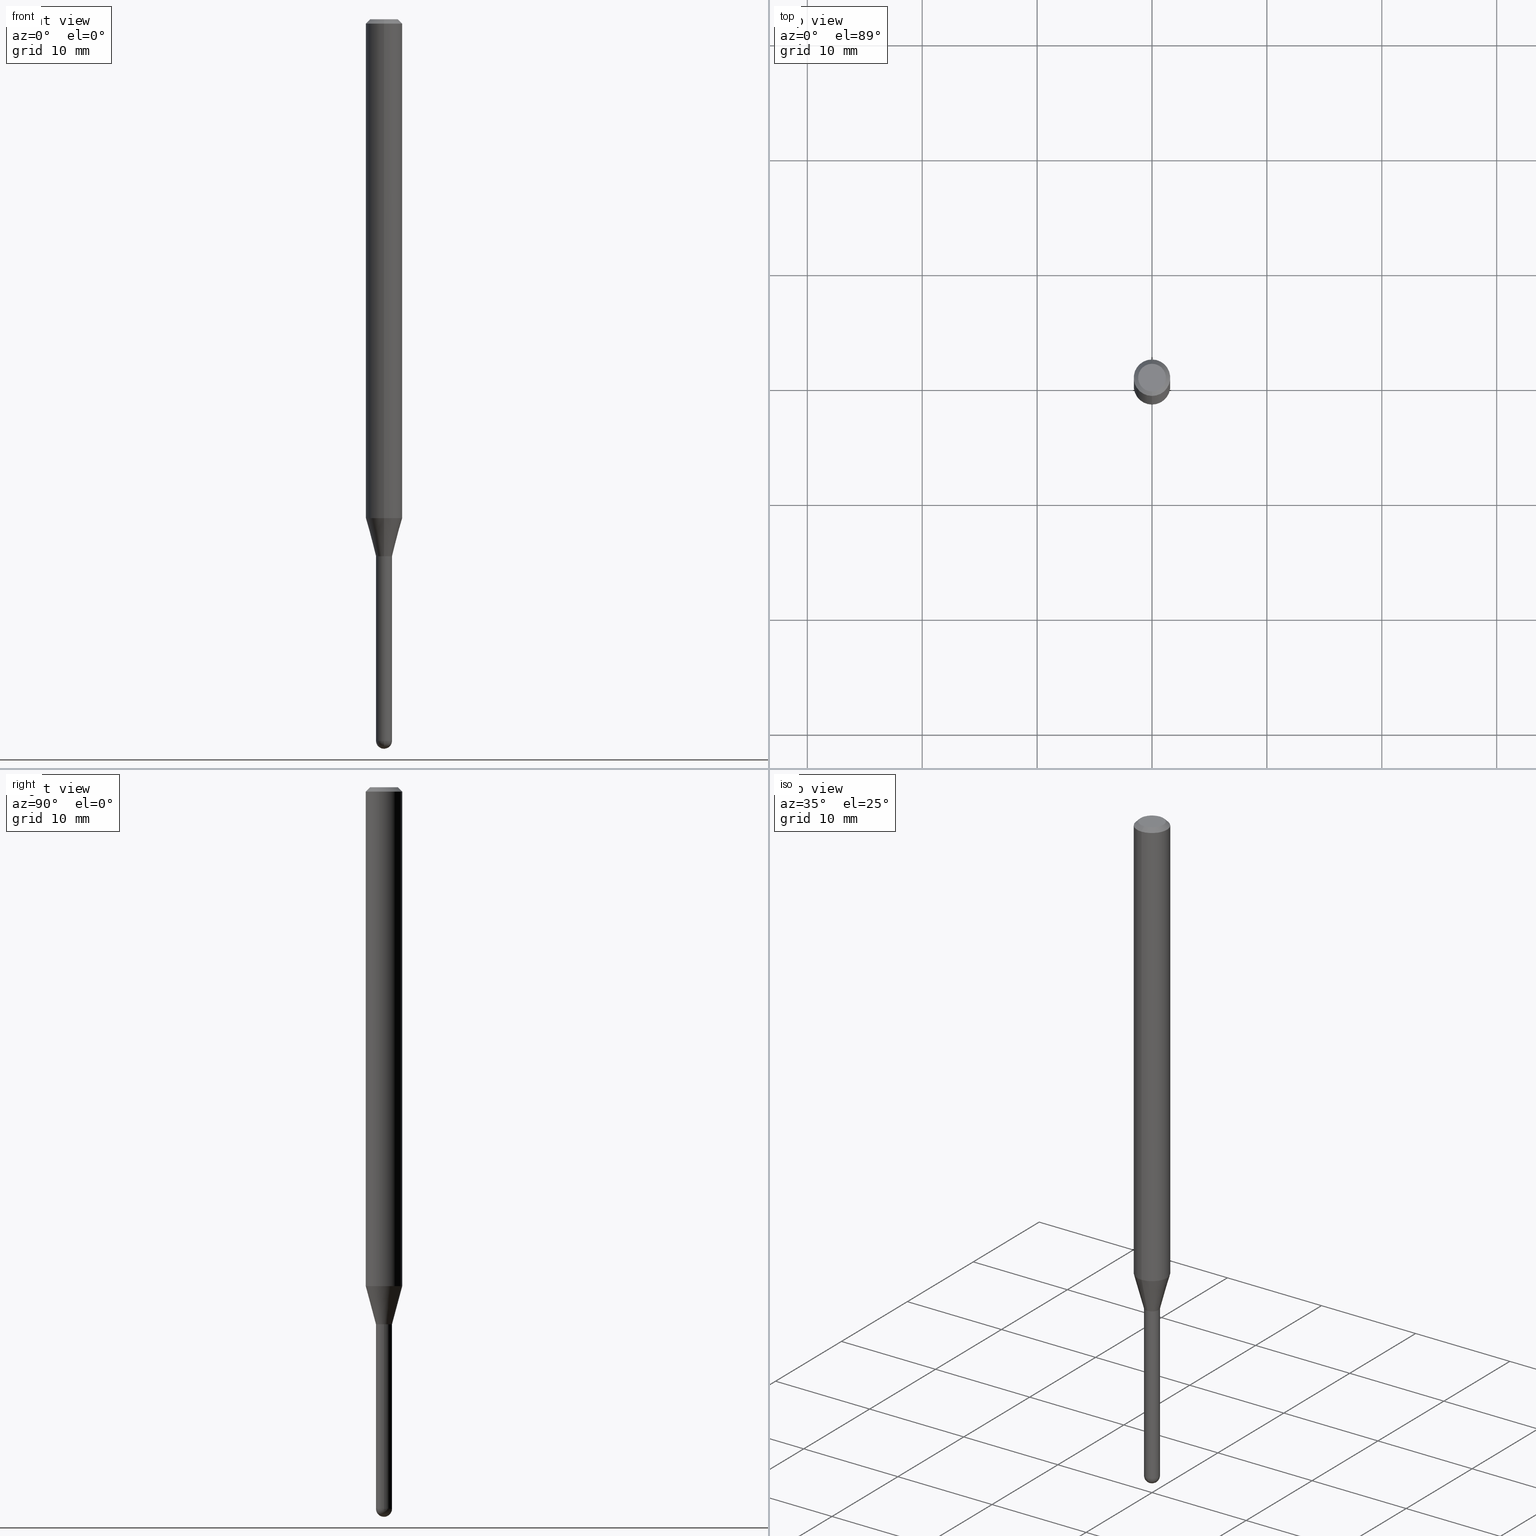
[diagram: canonical four-view strip — front | top / right | iso, engineering-drawing reading convention]
A machine part, canonical four-view strip (front | top / right | iso — engineering-drawing reading convention). The complete STEP part file that produces these views, byte-faithful:
ISO-10303-21;
HEADER;
FILE_DESCRIPTION (( 'STEP AP203' ),
    '1' );
FILE_NAME ('04521.STEP',
    '2024-03-08T20:26:06',
    ( '' ),
    ( '' ),
    'SwSTEP 2.0',
    'SolidWorks 2023',
    '' );
FILE_SCHEMA (( 'CONFIG_CONTROL_DESIGN' ));
ENDSEC;

DATA;
#1 = CARTESIAN_POINT ( 'NONE',  ( 4.499652193453970198E-29, -6.424340571078891610E-15, -1.840000000000000080 ) ) ;
#2 = ORIENTED_EDGE ( 'NONE', *, *, #231, .T. ) ;
#3 = DATE_AND_TIME ( #360, #362 ) ;
#4 = AXIS2_PLACEMENT_3D ( 'NONE', #249, #282, #164 ) ;
#5 = COORDINATED_UNIVERSAL_TIME_OFFSET ( 5, 0, .BEHIND. ) ;
#6 = DIRECTION ( 'NONE',  ( -2.445463148616288200E-29, 3.491489440803745492E-15, 1.000000000000000000 ) ) ;
#7 = VERTEX_POINT ( 'NONE', #269 ) ;
#8 = CARTESIAN_POINT ( 'NONE',  ( 4.440892098500625669E-16, 0.06250000000000000000, -2.182180900502340932E-16 ) ) ;
#9 = EDGE_LOOP ( 'NONE', ( #454, #170, #74, #43 ) ) ;
#10 = ADVANCED_FACE ( 'NONE', ( #348 ), #67, .T. ) ;
#11 = APPROVAL_DATE_TIME ( #285, #388 ) ;
#12 = DIRECTION ( 'NONE',  ( 1.000000000000000000, 0.000000000000000000, 0.000000000000000000 ) ) ;
#13 = COORDINATED_UNIVERSAL_TIME_OFFSET ( 5, 0, .BEHIND. ) ;
#14 = DIRECTION ( 'NONE',  ( 2.445463148616288200E-29, -3.491489440803745492E-15, -1.000000000000000000 ) ) ;
#15 = ORIENTED_EDGE ( 'NONE', *, *, #248, .T. ) ;
#16 = EDGE_CURVE ( 'NONE', #24, #136, #499, .T. ) ;
#17 = VECTOR ( 'NONE', #446, 39.37007874015748143 ) ;
#18 = LINE ( 'NONE', #286, #52 ) ;
#19 = PERSON_AND_ORGANIZATION_ROLE ( 'design_supplier' ) ;
#20 = FACE_OUTER_BOUND ( 'NONE', #175, .T. ) ;
#21 = VERTEX_POINT ( 'NONE', #308 ) ;
#22 = EDGE_CURVE ( 'NONE', #380, #76, #299, .T. ) ;
#23 = DIRECTION ( 'NONE',  ( -6.982962677686265922E-15, -1.000000000000000000, 3.491489440803745492E-15 ) ) ;
#24 = VERTEX_POINT ( 'NONE', #26 ) ;
#25 = CARTESIAN_POINT ( 'NONE',  ( 6.112496161815219763E-29, -8.730387236456691573E-15, -2.500000000000000000 ) ) ;
#26 = CARTESIAN_POINT ( 'NONE',  ( -1.885399922974841503E-16, -0.02700000000000642511, -1.840000000000000080 ) ) ;
#27 = CARTESIAN_POINT ( 'NONE',  ( -3.773273898774340269E-16, -0.04749999999999999362, 1.003458992289101758E-16 ) ) ;
#28 = AXIS2_PLACEMENT_3D ( 'NONE', #182, #339, #381 ) ;
#29 = CARTESIAN_POINT ( 'NONE',  ( 3.668194722924448467E-31, -5.237234161205640695E-17, -0.01500000000000006710 ) ) ;
#30 = DIRECTION ( 'NONE',  ( -6.982962677686265133E-15, -1.000000000000000000, 0.000000000000000000 ) ) ;
#31 = EDGE_CURVE ( 'NONE', #253, #355, #64, .T. ) ;
#32 = FACE_OUTER_BOUND ( 'NONE', #457, .T. ) ;
#33 = ADVANCED_FACE ( 'NONE', ( #382 ), #204, .T. ) ;
#34 = AXIS2_PLACEMENT_3D ( 'NONE', #437, #399, #39 ) ;
#35 = FACE_OUTER_BOUND ( 'NONE', #86, .T. ) ;
#36 = VERTEX_POINT ( 'NONE', #186 ) ;
#37 = CIRCLE ( 'NONE', #417, 0.02750000000000009381 ) ;
#38 = DIRECTION ( 'NONE',  ( 1.000000000000000000, -6.982962677686279332E-15, 0.000000000000000000 ) ) ;
#39 = DIRECTION ( 'NONE',  ( -6.982962677686265922E-15, -1.000000000000000000, 0.000000000000000000 ) ) ;
#40 = ORIENTED_EDGE ( 'NONE', *, *, #424, .F. ) ;
#41 = DIRECTION ( 'NONE',  ( -2.445463148616288200E-29, 3.491489440803745492E-15, 1.000000000000000000 ) ) ;
#42 = DATE_TIME_ROLE ( 'classification_date' ) ;
#43 = ORIENTED_EDGE ( 'NONE', *, *, #220, .F. ) ;
#44 = DIRECTION ( 'NONE',  ( -2.445463148616287919E-29, 3.491489440803745492E-15, 1.000000000000000000 ) ) ;
#45 = EDGE_CURVE ( 'NONE', #21, #465, #236, .T. ) ;
#46 = EDGE_LOOP ( 'NONE', ( #414, #475, #63, #40, #324 ) ) ;
#47 = CARTESIAN_POINT ( 'NONE',  ( 6.046421623292748621E-29, -8.632687610289675147E-15, -2.472499999999999254 ) ) ;
#48 = CALENDAR_DATE ( 2024, 8, 3 ) ;
#49 = DIRECTION ( 'NONE',  ( -6.982962677686265922E-15, -1.000000000000000000, 4.370956789862821150E-15 ) ) ;
#50 = VERTEX_POINT ( 'NONE', #301 ) ;
#51 = ADVANCED_FACE ( 'NONE', ( #232 ), #138, .T. ) ;
#52 = VECTOR ( 'NONE', #178, 39.37007874015748854 ) ;
#53 = CIRCLE ( 'NONE', #461, 0.06250000000000000000 ) ;
#54 = DIRECTION ( 'NONE',  ( -2.445468806185136877E-29, 3.491481338843145188E-15, 1.000000000000000000 ) ) ;
#55 = ORIENTED_EDGE ( 'NONE', *, *, #400, .F. ) ;
#56 = DIRECTION ( 'NONE',  ( 6.982962677686265922E-15, 1.000000000000000000, 0.000000000000000000 ) ) ;
#57 = FACE_OUTER_BOUND ( 'NONE', #91, .T. ) ;
#58 = ORIENTED_EDGE ( 'NONE', *, *, #197, .T. ) ;
#59 = DIRECTION ( 'NONE',  ( -2.445463148616288200E-29, 3.491489440803745492E-15, 1.000000000000000000 ) ) ;
#60 = DIRECTION ( 'NONE',  ( 2.445463148616288200E-29, -3.491489440803745492E-15, -1.000000000000000000 ) ) ;
#61 = CONICAL_SURFACE ( 'NONE', #34, 0.02749999999999992034, 0.2617993877991577900 ) ;
#62 = AXIS2_PLACEMENT_3D ( 'NONE', #295, #422, #256 ) ;
#63 = ORIENTED_EDGE ( 'NONE', *, *, #507, .F. ) ;
#64 = LINE ( 'NONE', #223, #266 ) ;
#65 = EDGE_CURVE ( 'NONE', #355, #496, #316, .T. ) ;
#66 = DIRECTION ( 'NONE',  ( 1.000000000000000000, -6.982962677686279332E-15, 0.000000000000000000 ) ) ;
#67 = CYLINDRICAL_SURFACE ( 'NONE', #234, 0.02750000000000000014 ) ;
#68 = ADVANCED_FACE ( 'NONE', ( #190 ), #506, .T. ) ;
#69 = DIRECTION ( 'NONE',  ( -2.445468806185136597E-29, 3.491481338843145583E-15, 1.000000000000000000 ) ) ;
#70 = VECTOR ( 'NONE', #44, 39.37007874015748143 ) ;
#71 = APPROVAL_DATE_TIME ( #115, #270 ) ;
#72 = DIRECTION ( 'NONE',  ( -2.445463148616288200E-29, 3.491489440803745492E-15, 1.000000000000000000 ) ) ;
#73 = AXIS2_PLACEMENT_3D ( 'NONE', #113, #212, #262 ) ;
#74 = ORIENTED_EDGE ( 'NONE', *, *, #307, .F. ) ;
#75 = AXIS2_PLACEMENT_3D ( 'NONE', #156, #6, #169 ) ;
#76 = VERTEX_POINT ( 'NONE', #191 ) ;
#77 = DIRECTION ( 'NONE',  ( -6.982962677686265922E-15, -1.000000000000000000, 0.000000000000000000 ) ) ;
#78 = ORIENTED_EDGE ( 'NONE', *, *, #197, .F. ) ;
#79 = PERSON_AND_ORGANIZATION ( #341, #378 ) ;
#80 = CARTESIAN_POINT ( 'NONE',  ( -1.885399922974841503E-16, -0.02700000000000642511, -1.840000000000000080 ) ) ;
#81 = ORIENTED_EDGE ( 'NONE', *, *, #145, .F. ) ;
#82 = AXIS2_PLACEMENT_3D ( 'NONE', #268, #384, #144 ) ;
#83 = CC_DESIGN_APPROVAL ( #388, ( #229 ) ) ;
#84 = CARTESIAN_POINT ( 'NONE',  ( 4.499652193453970198E-29, -6.424340571078891610E-15, -1.840000000000000080 ) ) ;
#85 = DIRECTION ( 'NONE',  ( -4.937700262164674260E-15, -0.7071067811865632269, 0.7071067811865319186 ) ) ;
#86 = EDGE_LOOP ( 'NONE', ( #78, #377, #15, #88 ) ) ;
#87 = DIRECTION ( 'NONE',  ( -2.445463148616288200E-29, 3.491489440803745492E-15, 1.000000000000000000 ) ) ;
#88 = ORIENTED_EDGE ( 'NONE', *, *, #436, .F. ) ;
#89 = CARTESIAN_POINT ( 'NONE',  ( 6.044069915997506284E-29, -8.636055388987333140E-15, -2.472500000000000142 ) ) ;
#90 = CARTESIAN_POINT ( 'NONE',  ( -4.364351673553912750E-16, -0.06250000000000005551, -0.01499999999999984852 ) ) ;
#91 = EDGE_LOOP ( 'NONE', ( #123, #363 ) ) ;
#92 = CIRCLE ( 'NONE', #392, 0.02699999999999999969 ) ;
#93 = FACE_OUTER_BOUND ( 'NONE', #239, .T. ) ;
#94 = ORIENTED_EDGE ( 'NONE', *, *, #153, .T. ) ;
#95 = LINE ( 'NONE', #411, #430 ) ;
#96 = CARTESIAN_POINT ( 'NONE',  ( 0.000000000000000000, 0.000000000000000000, 0.000000000000000000 ) ) ;
#97 = DIRECTION ( 'NONE',  ( -2.445463148616288200E-29, 3.491489440803745492E-15, 1.000000000000000000 ) ) ;
#98 = ADVANCED_FACE ( 'NONE', ( #32 ), #192, .F. ) ;
#99 = DIRECTION ( 'NONE',  ( -1.000000000000000000, 7.105427357601001070E-15, -4.926315508542082329E-29 ) ) ;
#100 = ORIENTED_EDGE ( 'NONE', *, *, #65, .T. ) ;
#101 = LINE ( 'NONE', #80, #353 ) ;
#102 = AXIS2_PLACEMENT_3D ( 'NONE', #278, #366, #484 ) ;
#103 = DIRECTION ( 'NONE',  ( 1.000000000000000000, -6.982962677686266711E-15, 4.876176775795935793E-29 ) ) ;
#104 = ORIENTED_EDGE ( 'NONE', *, *, #436, .T. ) ;
#105 = APPLICATION_CONTEXT ( 'configuration controlled 3d designs of mechanical parts and assemblies' ) ;
#106 = EDGE_CURVE ( 'NONE', #21, #76, #95, .T. ) ;
#107 = CIRCLE ( 'NONE', #195, 0.02749999999999992381 ) ;
#108 = CC_DESIGN_PERSON_AND_ORGANIZATION_ASSIGNMENT ( #79, #452, ( #149 ) ) ;
#109 = ORIENTED_EDGE ( 'NONE', *, *, #259, .T. ) ;
#110 = APPROVAL_ROLE ( '' ) ;
#111 = EDGE_CURVE ( 'NONE', #257, #367, #345, .T. ) ;
#112 = DIRECTION ( 'NONE',  ( -6.982962677686265133E-15, -1.000000000000000000, 0.000000000000000000 ) ) ;
#113 = CARTESIAN_POINT ( 'NONE',  ( 6.046421623292748621E-29, -8.632687610289675147E-15, -2.472499999999999254 ) ) ;
#114 = AXIS2_PLACEMENT_3D ( 'NONE', #290, #492, #342 ) ;
#115 = DATE_AND_TIME ( #275, #279 ) ;
#116 = FACE_OUTER_BOUND ( 'NONE', #311, .T. ) ;
#117 = ORIENTED_EDGE ( 'NONE', *, *, #157, .T. ) ;
#118 = CYLINDRICAL_SURFACE ( 'NONE', #102, 0.06250000000000000000 ) ;
#119 = EDGE_LOOP ( 'NONE', ( #109, #58, #337, #261 ) ) ;
#120 = APPLICATION_PROTOCOL_DEFINITION ( 'international standard', 'config_control_design', 1994, #105 ) ;
#121 = DIRECTION ( 'NONE',  ( -2.445463148616287919E-29, 3.491489440803745492E-15, 1.000000000000000000 ) ) ;
#122 = MANIFOLD_SOLID_BREP ( 'Body-Move/Copy2[1]', #287 ) ;
#123 = ORIENTED_EDGE ( 'NONE', *, *, #16, .F. ) ;
#124 = AXIS2_PLACEMENT_3D ( 'NONE', #96, #59, #23 ) ;
#125 = PERSON_AND_ORGANIZATION ( #341, #378 ) ;
#126 = ADVANCED_FACE ( 'NONE', ( #168 ), #333, .T. ) ;
#127 = DIRECTION ( 'NONE',  ( -6.982962677686265922E-15, -1.000000000000000000, 0.000000000000000000 ) ) ;
#128 = APPROVAL_ROLE ( '' ) ;
#129 = DIRECTION ( 'NONE',  ( 5.024295867788190974E-15, 0.7071067811865681119, 0.7071067811865270336 ) ) ;
#130 = ORIENTED_EDGE ( 'NONE', *, *, #194, .F. ) ;
#131 = APPLICATION_PROTOCOL_DEFINITION ( 'international standard', 'config_control_design', 1994, #264 ) ;
#132 = CARTESIAN_POINT ( 'NONE',  ( 6.044069915997506284E-29, -8.636055388987333140E-15, -2.472500000000000142 ) ) ;
#133 = CARTESIAN_POINT ( 'NONE',  ( 3.668194722924448467E-31, -5.237234161205640695E-17, -0.01500000000000006710 ) ) ;
#134 = ORIENTED_EDGE ( 'NONE', *, *, #259, .F. ) ;
#135 = CARTESIAN_POINT ( 'NONE',  ( 0.02750000000000000014, -1.920314736363723444E-16, 1.340948613343882413E-30 ) ) ;
#136 = VERTEX_POINT ( 'NONE', #251 ) ;
#137 = AXIS2_PLACEMENT_3D ( 'NONE', #233, #263, #391 ) ;
#138 = CONICAL_SURFACE ( 'NONE', #469, 0.06250000000000000000, 0.7853981633974483900 ) ;
#139 = AXIS2_PLACEMENT_3D ( 'NONE', #180, #379, #335 ) ;
#140 = DIRECTION ( 'NONE',  ( -2.445463148616288200E-29, 3.491489440803745492E-15, 1.000000000000000000 ) ) ;
#141 = DIRECTION ( 'NONE',  ( -6.982962677686266711E-15, -1.000000000000000000, 3.491489440803745886E-15 ) ) ;
#142 = PRODUCT ( '04521', '04521', '', ( #408 ) ) ;
#143 = CARTESIAN_POINT ( 'NONE',  ( 1.920314736364173341E-16, 0.02749999999999357819, -1.840000000000000080 ) ) ;
#144 = DIRECTION ( 'NONE',  ( 1.000000000000000000, -6.982962677686279332E-15, 0.000000000000000000 ) ) ;
#145 = EDGE_CURVE ( 'NONE', #7, #36, #449, .T. ) ;
#146 = CC_DESIGN_PERSON_AND_ORGANIZATION_ASSIGNMENT ( #368, #19, ( #229 ) ) ;
#147 = CARTESIAN_POINT ( 'NONE',  ( 6.044069915997506284E-29, -8.636055388987333140E-15, -2.472500000000000142 ) ) ;
#148 = CIRCLE ( 'NONE', #4, 0.02750000000000000014 ) ;
#149 = SECURITY_CLASSIFICATION ( '', '', #243 ) ;
#150 = APPROVAL_PERSON_ORGANIZATION ( #320, #388, #420 ) ;
#151 = ORIENTED_EDGE ( 'NONE', *, *, #356, .F. ) ;
#152 = CARTESIAN_POINT ( 'NONE',  ( 0.02750000000000000014, -6.616357137107761216E-15, -1.840000000000000080 ) ) ;
#153 = EDGE_CURVE ( 'NONE', #395, #482, #18, .T. ) ;
#154 = CARTESIAN_POINT ( 'NONE',  ( 4.499662603380651271E-29, -6.424325663471388724E-15, -1.840000000000000080 ) ) ;
#155 = CIRCLE ( 'NONE', #271, 0.06250000000000000000 ) ;
#156 = CARTESIAN_POINT ( 'NONE',  ( 0.000000000000000000, 0.000000000000000000, 0.000000000000000000 ) ) ;
#157 = EDGE_CURVE ( 'NONE', #350, #395, #434, .T. ) ;
#158 = CARTESIAN_POINT ( 'NONE',  ( -1.953992523339674261E-16, -0.02750000000000868070, -2.472499999999999254 ) ) ;
#159 = ORIENTED_EDGE ( 'NONE', *, *, #332, .T. ) ;
#160 = ADVANCED_FACE ( 'NONE', ( #184 ), #300, .F. ) ;
#161 = DIRECTION ( 'NONE',  ( -2.445463148616287919E-29, 3.491489440803745492E-15, 1.000000000000000000 ) ) ;
#162 = AXIS2_PLACEMENT_3D ( 'NONE', #147, #468, #389 ) ;
#163 = DATE_TIME_ROLE ( 'creation_date' ) ;
#164 = DIRECTION ( 'NONE',  ( 1.000000000000000000, -6.982962677686279332E-15, 0.000000000000000000 ) ) ;
#165 = EDGE_CURVE ( 'NONE', #447, #36, #375, .T. ) ;
#166 = EDGE_LOOP ( 'NONE', ( #208, #250, #313, #289, #442 ) ) ;
#167 = CALENDAR_DATE ( 2024, 8, 3 ) ;
#168 = FACE_OUTER_BOUND ( 'NONE', #9, .T. ) ;
#169 = DIRECTION ( 'NONE',  ( -6.982962677686265922E-15, -1.000000000000000000, 3.491489440803745492E-15 ) ) ;
#170 = ORIENTED_EDGE ( 'NONE', *, *, #171, .T. ) ;
#171 = EDGE_CURVE ( 'NONE', #447, #284, #37, .T. ) ;
#172 = EDGE_CURVE ( 'NONE', #465, #380, #510, .T. ) ;
#173 = DIRECTION ( 'NONE',  ( -6.982962677686265922E-15, -1.000000000000000000, 3.491489440803745492E-15 ) ) ;
#174 = CARTESIAN_POINT ( 'NONE',  ( -0.02750000000000000014, -7.333107384546504605E-15, -1.840000000000000080 ) ) ;
#175 = EDGE_LOOP ( 'NONE', ( #508, #467, #134, #265 ) ) ;
#176 = CONICAL_SURFACE ( 'NONE', #205, 0.06250000000000000000, 0.7853981633974483900 ) ;
#177 = CC_DESIGN_APPROVAL ( #270, ( #235 ) ) ;
#178 = DIRECTION ( 'NONE',  ( -1.807323732225381021E-15, -0.2588190451025254579, 0.9659258262890669799 ) ) ;
#179 = DATE_AND_TIME ( #48, #385 ) ;
#180 = CARTESIAN_POINT ( 'NONE',  ( 4.499652193453970198E-29, -6.424340571078891610E-15, -1.840000000000000080 ) ) ;
#181 = ORIENTED_EDGE ( 'NONE', *, *, #16, .T. ) ;
#182 = CARTESIAN_POINT ( 'NONE',  ( 4.499652193453970198E-29, -6.424340571078891610E-15, -1.840000000000000080 ) ) ;
#183 = EDGE_LOOP ( 'NONE', ( #274, #401, #81, #419 ) ) ;
#184 = FACE_OUTER_BOUND ( 'NONE', #503, .T. ) ;
#185 = DIRECTION ( 'NONE',  ( -2.445463148616288200E-29, 3.491489440803745492E-15, 1.000000000000000000 ) ) ;
#186 = CARTESIAN_POINT ( 'NONE',  ( 1.920314736364331113E-16, 0.02749999999999141673, -2.472499999999999254 ) ) ;
#187 = CARTESIAN_POINT ( 'NONE',  ( 0.000000000000000000, 0.000000000000000000, 0.000000000000000000 ) ) ;
#188 = AXIS2_PLACEMENT_3D ( 'NONE', #450, #87, #173 ) ;
#189 = CARTESIAN_POINT ( 'NONE',  ( -4.364351673553500570E-16, -0.06250000000000599520, -1.709378221735093017 ) ) ;
#190 = FACE_OUTER_BOUND ( 'NONE', #183, .T. ) ;
#191 = CARTESIAN_POINT ( 'NONE',  ( 4.440892098501046230E-16, 0.06249999999999995143, -0.01500000000000028394 ) ) ;
#192 = CYLINDRICAL_SURFACE ( 'NONE', #188, 0.02749999999999992034 ) ;
#193 = AXIS2_PLACEMENT_3D ( 'NONE', #432, #97, #349 ) ;
#194 = EDGE_CURVE ( 'NONE', #24, #367, #101, .T. ) ;
#195 = AXIS2_PLACEMENT_3D ( 'NONE', #481, #72, #77 ) ;
#196 = CIRCLE ( 'NONE', #440, 0.02750000000000000014 ) ;
#197 = EDGE_CURVE ( 'NONE', #50, #76, #359, .T. ) ;
#198 = COORDINATED_UNIVERSAL_TIME_OFFSET ( 5, 0, .BEHIND. ) ;
#199 = EDGE_CURVE ( 'NONE', #350, #50, #474, .T. ) ;
#200 = FACE_OUTER_BOUND ( 'NONE', #296, .T. ) ;
#201 = CIRCLE ( 'NONE', #139, 0.02749999999999992034 ) ;
#202 = CIRCLE ( 'NONE', #435, 0.02750000000000000014 ) ;
#203 = CARTESIAN_POINT ( 'NONE',  ( -4.287811248607203282E-16, -0.06250000000000005551, -0.01499999999999984852 ) ) ;
#204 = CONICAL_SURFACE ( 'NONE', #397, 0.02699999999999999969, 0.7853981633974739252 ) ;
#205 = AXIS2_PLACEMENT_3D ( 'NONE', #369, #14, #291 ) ;
#206 = APPROVAL_PERSON_ORGANIZATION ( #293, #270, #110 ) ;
#207 = CARTESIAN_POINT ( 'NONE',  ( -4.364351673553916201E-16, -0.06250000000000000000, 2.182180900502340932E-16 ) ) ;
#208 = ORIENTED_EDGE ( 'NONE', *, *, #31, .F. ) ;
#209 = DIRECTION ( 'NONE',  ( -2.445463148616287919E-29, 3.491489440803745492E-15, 1.000000000000000000 ) ) ;
#210 = ORIENTED_EDGE ( 'NONE', *, *, #157, .F. ) ;
#211 = ADVANCED_FACE ( 'NONE', ( #116 ), #479, .F. ) ;
#212 = DIRECTION ( 'NONE',  ( -2.445468806185136597E-29, 3.491481338843145583E-15, 1.000000000000000000 ) ) ;
#213 = ORIENTED_EDGE ( 'NONE', *, *, #323, .T. ) ;
#214 = AXIS2_PLACEMENT_3D ( 'NONE', #373, #221, #56 ) ;
#215 = VECTOR ( 'NONE', #54, 39.37007874015748143 ) ;
#216 = DIRECTION ( 'NONE',  ( -6.982962677686265922E-15, -1.000000000000000000, 0.000000000000000000 ) ) ;
#217 = CYLINDRICAL_SURFACE ( 'NONE', #124, 0.06250000000000000000 ) ;
#218 = ORIENTED_EDGE ( 'NONE', *, *, #111, .T. ) ;
#219 = UNCERTAINTY_MEASURE_WITH_UNIT (LENGTH_MEASURE( 1.000000000000000082E-05 ), #277, 'distance_accuracy_value', 'NONE');
#220 = EDGE_CURVE ( 'NONE', #36, #253, #148, .T. ) ;
#221 = DIRECTION ( 'NONE',  ( -1.000000000000000000, 6.982962677686265922E-15, -4.883557194083112901E-29 ) ) ;
#222 = PLANE ( 'NONE',  #28 ) ;
#223 = CARTESIAN_POINT ( 'NONE',  ( -0.02750000000000000014, 1.953992523340275521E-16, -1.352707149820099181E-30 ) ) ;
#224 = CARTESIAN_POINT ( 'NONE',  ( 1.601774674811879328E-45, -2.286920318883957427E-31, -6.549984920926771383E-17 ) ) ;
#225 = DIMENSIONAL_EXPONENTS ( 1.000000000000000000, 0.000000000000000000, 0.000000000000000000, 0.000000000000000000, 0.000000000000000000, 0.000000000000000000, 0.000000000000000000 ) ;
#226 = PERSON_AND_ORGANIZATION_ROLE ( 'creator' ) ;
#227 = DIRECTION ( 'NONE',  ( 6.982962677686265922E-15, 1.000000000000000000, -3.483106191921935554E-15 ) ) ;
#228 = AXIS2_PLACEMENT_3D ( 'NONE', #132, #294, #455 ) ;
#229 = PRODUCT_DEFINITION_FORMATION_WITH_SPECIFIED_SOURCE ( 'ANY', '', #142, .NOT_KNOWN. ) ;
#230 = CARTESIAN_POINT ( 'NONE',  ( 0.000000000000000000, 0.000000000000000000, 0.000000000000000000 ) ) ;
#231 = EDGE_CURVE ( 'NONE', #367, #257, #107, .T. ) ;
#232 = FACE_OUTER_BOUND ( 'NONE', #407, .T. ) ;
#233 = CARTESIAN_POINT ( 'NONE',  ( 3.668194722924448467E-31, -5.237234161205640695E-17, -0.01500000000000006710 ) ) ;
#234 = AXIS2_PLACEMENT_3D ( 'NONE', #230, #505, #103 ) ;
#235 = PRODUCT_DEFINITION ( 'UNKNOWN', '', #229, #472 ) ;
#236 = CIRCLE ( 'NONE', #476, 0.04749999999999999362 ) ;
#237 = AXIS2_PLACEMENT_3D ( 'NONE', #47, #255, #463 ) ;
#238 = ADVANCED_FACE ( 'NONE', ( #35 ), #118, .T. ) ;
#239 = EDGE_LOOP ( 'NONE', ( #322, #292, #298, #104 ) ) ;
#240 = ADVANCED_FACE ( 'NONE', ( #312 ), #244, .T. ) ;
#241 = COORDINATED_UNIVERSAL_TIME_OFFSET ( 5, 0, .BEHIND. ) ;
#242 = DIRECTION ( 'NONE',  ( -7.105427357601001070E-15, -1.000000000000000000, 0.000000000000000000 ) ) ;
#243 = SECURITY_CLASSIFICATION_LEVEL ( 'unclassified' ) ;
#244 = CYLINDRICAL_SURFACE ( 'NONE', #398, 0.02750000000000000014 ) ;
#245 = CC_DESIGN_PERSON_AND_ORGANIZATION_ASSIGNMENT ( #336, #226, ( #229 ) ) ;
#246 = CARTESIAN_POINT ( 'NONE',  ( 4.180221448300412991E-29, -5.968276011527961205E-15, -1.709378221735093462 ) ) ;
#247 = ORIENTED_EDGE ( 'NONE', *, *, #356, .T. ) ;
#248 = EDGE_CURVE ( 'NONE', #482, #380, #441, .T. ) ;
#249 = CARTESIAN_POINT ( 'NONE',  ( 6.046421623292748621E-29, -8.632687610289675147E-15, -2.472499999999999254 ) ) ;
#250 = ORIENTED_EDGE ( 'NONE', *, *, #307, .T. ) ;
#251 = CARTESIAN_POINT ( 'NONE',  ( 1.936228954946719693E-16, 0.02699999999999357428, -1.840000000000000080 ) ) ;
#252 = CARTESIAN_POINT ( 'NONE',  ( -1.920314736363274533E-16, -0.02750000000000644290, -1.839500000000000135 ) ) ;
#253 = VERTEX_POINT ( 'NONE', #354 ) ;
#254 = CC_DESIGN_DATE_AND_TIME_ASSIGNMENT ( #3, #163, ( #235 ) ) ;
#255 = DIRECTION ( 'NONE',  ( -2.445468806185136597E-29, 3.491481338843145583E-15, 1.000000000000000000 ) ) ;
#256 = DIRECTION ( 'NONE',  ( -6.982962677686265922E-15, -1.000000000000000000, 0.000000000000000000 ) ) ;
#257 = VERTEX_POINT ( 'NONE', #402 ) ;
#258 = AXIS2_PLACEMENT_3D ( 'NONE', #1, #473, #112 ) ;
#259 = EDGE_CURVE ( 'NONE', #482, #50, #404, .T. ) ;
#260 = CARTESIAN_POINT ( 'NONE',  ( 4.499652193453970198E-29, -6.424340571078891610E-15, -1.840000000000000080 ) ) ;
#261 = ORIENTED_EDGE ( 'NONE', *, *, #248, .F. ) ;
#262 = DIRECTION ( 'NONE',  ( 1.000000000000000000, -6.982962677686279332E-15, 0.000000000000000000 ) ) ;
#263 = DIRECTION ( 'NONE',  ( -2.445463148616288200E-29, 3.491489440803745492E-15, 1.000000000000000000 ) ) ;
#264 = APPLICATION_CONTEXT ( 'configuration controlled 3d designs of mechanical parts and assemblies' ) ;
#265 = ORIENTED_EDGE ( 'NONE', *, *, #153, .F. ) ;
#266 = VECTOR ( 'NONE', #470, 39.37007874015748143 ) ;
#267 = VECTOR ( 'NONE', #486, 39.37007874015748143 ) ;
#268 = CARTESIAN_POINT ( 'NONE',  ( 4.499662603380651271E-29, -6.424325663471388724E-15, -1.840000000000000080 ) ) ;
#269 = CARTESIAN_POINT ( 'NONE',  ( 0.02750000000000000014, -7.720538110516904428E-15, -2.472499999999999254 ) ) ;
#270 = APPROVAL ( #438, 'UNSPECIFIED' ) ;
#271 = AXIS2_PLACEMENT_3D ( 'NONE', #413, #140, #49 ) ;
#272 = CC_DESIGN_SECURITY_CLASSIFICATION ( #149, ( #229 ) ) ;
#273 = ADVANCED_FACE ( 'NONE', ( #200 ), #310, .T. ) ;
#274 = ORIENTED_EDGE ( 'NONE', *, *, #171, .F. ) ;
#275 = CALENDAR_DATE ( 2024, 8, 3 ) ;
#276 = FACE_OUTER_BOUND ( 'NONE', #409, .T. ) ;
#277 =( CONVERSION_BASED_UNIT ( 'INCH', #314 ) LENGTH_UNIT ( ) NAMED_UNIT ( #225 ) );
#278 = CARTESIAN_POINT ( 'NONE',  ( 0.000000000000000000, 0.000000000000000000, 0.000000000000000000 ) ) ;
#279 = LOCAL_TIME ( 15, 26, 6.000000000000000000, #198 ) ;
#280 = ADVANCED_FACE ( 'NONE', ( #276 ), #61, .T. ) ;
#281 = ORIENTED_EDGE ( 'NONE', *, *, #111, .F. ) ;
#282 = DIRECTION ( 'NONE',  ( -2.445468806185136597E-29, 3.491481338843145583E-15, 1.000000000000000000 ) ) ;
#283 = ORIENTED_EDGE ( 'NONE', *, *, #448, .T. ) ;
#284 = VERTEX_POINT ( 'NONE', #158 ) ;
#285 = DATE_AND_TIME ( #167, #478 ) ;
#286 = CARTESIAN_POINT ( 'NONE',  ( -1.920314736363267384E-16, -0.02750000000000634576, -1.840000000000000080 ) ) ;
#287 = CLOSED_SHELL ( 'NONE', ( #240, #126, #318, #68, #10 ) ) ;
#288 = VECTOR ( 'NONE', #209, 39.37007874015748143 ) ;
#289 = ORIENTED_EDGE ( 'NONE', *, *, #424, .T. ) ;
#290 = CARTESIAN_POINT ( 'NONE',  ( 3.316907271900976096E-16, 0.04749999999999999362, -1.985956730428117650E-16 ) ) ;
#291 = DIRECTION ( 'NONE',  ( 6.982962677686265922E-15, 1.000000000000000000, -3.483106191921935554E-15 ) ) ;
#292 = ORIENTED_EDGE ( 'NONE', *, *, #45, .F. ) ;
#293 = PERSON_AND_ORGANIZATION ( #341, #378 ) ;
#294 = DIRECTION ( 'NONE',  ( 1.000000000000000000, -6.982962677686265922E-15, 4.883557194083112340E-29 ) ) ;
#295 = CARTESIAN_POINT ( 'NONE',  ( 4.499652193453970198E-29, -6.424340571078891610E-15, -1.840000000000000080 ) ) ;
#296 = EDGE_LOOP ( 'NONE', ( #151, #512, #370, #281 ) ) ;
#297 = FACE_OUTER_BOUND ( 'NONE', #119, .T. ) ;
#298 = ORIENTED_EDGE ( 'NONE', *, *, #106, .T. ) ;
#299 = CIRCLE ( 'NONE', #137, 0.06250000000000000000 ) ;
#300 = PLANE ( 'NONE',  #114 ) ;
#301 = CARTESIAN_POINT ( 'NONE',  ( 4.440892098501041300E-16, 0.06249999999999401173, -1.709378221735093684 ) ) ;
#302 = MANIFOLD_SOLID_BREP ( 'Body-Move/Copy2[2]', #415 ) ;
#303 = CARTESIAN_POINT ( 'NONE',  ( 1.953992523340269605E-16, 0.02749999999999992034, -9.601595962210272146E-17 ) ) ;
#304 = ORIENTED_EDGE ( 'NONE', *, *, #45, .T. ) ;
#305 = AXIS2_PLACEMENT_3D ( 'NONE', #246, #41, #361 ) ;
#306 = AXIS2_PLACEMENT_3D ( 'NONE', #224, #185, #343 ) ;
#307 = EDGE_CURVE ( 'NONE', #253, #284, #460, .T. ) ;
#308 = CARTESIAN_POINT ( 'NONE',  ( 3.840629472727447874E-16, 0.04749999999999999362, -2.313455976474456528E-16 ) ) ;
#309 = ADVANCED_BREP_SHAPE_REPRESENTATION ( '04521', ( #122, #302, #406 ), #376 ) ;
#310 = CONICAL_SURFACE ( 'NONE', #258, 0.02699999999999999969, 0.7853981633974739252 ) ;
#311 = EDGE_LOOP ( 'NONE', ( #340, #55, #159, #2 ) ) ;
#312 = FACE_OUTER_BOUND ( 'NONE', #46, .T. ) ;
#313 = ORIENTED_EDGE ( 'NONE', *, *, #487, .T. ) ;
#314 = LENGTH_MEASURE_WITH_UNIT ( LENGTH_MEASURE( 0.02539999999999999897 ), #394 );
#315 =( NAMED_UNIT ( * ) PLANE_ANGLE_UNIT ( ) SI_UNIT ( $, .RADIAN. ) );
#316 = CIRCLE ( 'NONE', #82, 0.02750000000000000014 ) ;
#317 = AXIS2_PLACEMENT_3D ( 'NONE', #143, #328, #504 ) ;
#318 = ADVANCED_FACE ( 'NONE', ( #426 ), #347, .F. ) ;
#319 = EDGE_LOOP ( 'NONE', ( #181, #247, #423, #130 ) ) ;
#320 = PERSON_AND_ORGANIZATION ( #341, #378 ) ;
#321 = CARTESIAN_POINT ( 'NONE',  ( 1.953992523340719502E-16, 0.02749999999999349493, -1.840000000000000080 ) ) ;
#322 = ORIENTED_EDGE ( 'NONE', *, *, #172, .F. ) ;
#323 = EDGE_CURVE ( 'NONE', #350, #257, #466, .T. ) ;
#324 = ORIENTED_EDGE ( 'NONE', *, *, #145, .T. ) ;
#325 = CC_DESIGN_PERSON_AND_ORGANIZATION_ASSIGNMENT ( #125, #372, ( #142 ) ) ;
#326 = DIRECTION ( 'NONE',  ( -2.445463148616288200E-29, 3.491489440803745492E-15, 1.000000000000000000 ) ) ;
#327 = CALENDAR_DATE ( 2024, 8, 3 ) ;
#328 = DIRECTION ( 'NONE',  ( 2.438088387897960049E-29, -3.491481338843145188E-15, -1.000000000000000000 ) ) ;
#329 = AXIS2_PLACEMENT_3D ( 'NONE', #84, #488, #127 ) ;
#330 = ORIENTED_EDGE ( 'NONE', *, *, #106, .F. ) ;
#331 = DIRECTION ( 'NONE',  ( 0.000000000000000000, 0.000000000000000000, 1.000000000000000000 ) ) ;
#332 = EDGE_CURVE ( 'NONE', #395, #367, #416, .T. ) ;
#333 = SPHERICAL_SURFACE ( 'NONE', #214, 0.02750000000000009381 ) ;
#334 = APPROVAL_DATE_TIME ( #179, #495 ) ;
#335 = DIRECTION ( 'NONE',  ( -6.982962677686265922E-15, -1.000000000000000000, 0.000000000000000000 ) ) ;
#336 = PERSON_AND_ORGANIZATION ( #341, #378 ) ;
#337 = ORIENTED_EDGE ( 'NONE', *, *, #22, .F. ) ;
#338 = ADVANCED_FACE ( 'NONE', ( #93 ), #176, .T. ) ;
#339 = DIRECTION ( 'NONE',  ( -2.445463148616287639E-29, 3.491489440803745492E-15, 1.000000000000000000 ) ) ;
#340 = ORIENTED_EDGE ( 'NONE', *, *, #323, .F. ) ;
#341 = PERSON ( 'UNSPECIFIED', 'UNSPECIFIED', 'UNSPECIFIED', ('UNSPECIFIED'), ('UNSPECIFIED'), ('UNSPECIFIED') ) ;
#342 = DIRECTION ( 'NONE',  ( 6.982962677686265922E-15, 1.000000000000000000, -3.491489440803745492E-15 ) ) ;
#343 = DIRECTION ( 'NONE',  ( -6.982962677686266711E-15, -1.000000000000000000, 3.491489440803745886E-15 ) ) ;
#344 = CARTESIAN_POINT ( 'NONE',  ( 1.601774674811879328E-45, -2.286920318883957427E-31, -6.549984920926771383E-17 ) ) ;
#345 = CIRCLE ( 'NONE', #439, 0.02749999999999992381 ) ;
#346 = LOCAL_TIME ( 15, 26, 6.000000000000000000, #13 ) ;
#347 = PLANE ( 'NONE',  #317 ) ;
#348 = FACE_OUTER_BOUND ( 'NONE', #166, .T. ) ;
#349 = DIRECTION ( 'NONE',  ( -6.982962677686265133E-15, -1.000000000000000000, 0.000000000000000000 ) ) ;
#350 = VERTEX_POINT ( 'NONE', #500 ) ;
#351 = VECTOR ( 'NONE', #161, 39.37007874015748143 ) ;
#352 = EDGE_LOOP ( 'NONE', ( #462, #100 ) ) ;
#353 = VECTOR ( 'NONE', #85, 39.37007874015748143 ) ;
#354 = CARTESIAN_POINT ( 'NONE',  ( -0.02750000000000000014, -7.333107384546504605E-15, -2.472499999999999254 ) ) ;
#355 = VERTEX_POINT ( 'NONE', #174 ) ;
#356 = EDGE_CURVE ( 'NONE', #136, #257, #490, .T. ) ;
#357 = DIRECTION ( 'NONE',  ( -2.445468806185136597E-29, 3.491481338843145583E-15, 1.000000000000000000 ) ) ;
#358 = PERSON_AND_ORGANIZATION_ROLE ( 'creator' ) ;
#359 = LINE ( 'NONE', #8, #351 ) ;
#360 = CALENDAR_DATE ( 2024, 8, 3 ) ;
#361 = DIRECTION ( 'NONE',  ( -6.982962677686265922E-15, -1.000000000000000000, 4.370956789862821150E-15 ) ) ;
#362 = LOCAL_TIME ( 15, 26, 6.000000000000000000, #241 ) ;
#363 = ORIENTED_EDGE ( 'NONE', *, *, #387, .F. ) ;
#364 = COORDINATED_UNIVERSAL_TIME_OFFSET ( 5, 0, .BEHIND. ) ;
#365 = APPROVAL_STATUS ( 'not_yet_approved' ) ;
#366 = DIRECTION ( 'NONE',  ( -2.445463148616288200E-29, 3.491489440803745492E-15, 1.000000000000000000 ) ) ;
#367 = VERTEX_POINT ( 'NONE', #252 ) ;
#368 = PERSON_AND_ORGANIZATION ( #341, #378 ) ;
#369 = CARTESIAN_POINT ( 'NONE',  ( 3.668194722924448467E-31, -5.237234161205640695E-17, -0.01500000000000006710 ) ) ;
#370 = ORIENTED_EDGE ( 'NONE', *, *, #194, .T. ) ;
#371 = EDGE_CURVE ( 'NONE', #50, #482, #155, .T. ) ;
#372 = PERSON_AND_ORGANIZATION_ROLE ( 'design_owner' ) ;
#373 = CARTESIAN_POINT ( 'NONE',  ( 6.044069915997506284E-29, -8.636055388987333140E-15, -2.472500000000000142 ) ) ;
#374 = DIRECTION ( 'NONE',  ( -2.445463148616288200E-29, 3.491489440803745492E-15, 1.000000000000000000 ) ) ;
#375 = CIRCLE ( 'NONE', #228, 0.02750000000000009381 ) ;
#376 =( GEOMETRIC_REPRESENTATION_CONTEXT ( 3 ) GLOBAL_UNCERTAINTY_ASSIGNED_CONTEXT ( ( #219 ) ) GLOBAL_UNIT_ASSIGNED_CONTEXT ( ( #277, #315, #410 ) ) REPRESENTATION_CONTEXT ( 'NONE', 'WORKASPACE' ) );
#377 = ORIENTED_EDGE ( 'NONE', *, *, #371, .T. ) ;
#378 = ORGANIZATION ( 'UNSPECIFIED', 'UNSPECIFIED', '' ) ;
#379 = DIRECTION ( 'NONE',  ( -2.445463148616288200E-29, 3.491489440803745492E-15, 1.000000000000000000 ) ) ;
#380 = VERTEX_POINT ( 'NONE', #90 ) ;
#381 = DIRECTION ( 'NONE',  ( -6.982962677686265922E-15, -1.000000000000000000, 3.491489440803745492E-15 ) ) ;
#382 = FACE_OUTER_BOUND ( 'NONE', #319, .T. ) ;
#383 = DIRECTION ( 'NONE',  ( -6.982962677686265922E-15, -1.000000000000000000, 3.483106191921935554E-15 ) ) ;
#384 = DIRECTION ( 'NONE',  ( -2.445468806185136597E-29, 3.491481338843145583E-15, 1.000000000000000000 ) ) ;
#385 = LOCAL_TIME ( 15, 26, 6.000000000000000000, #5 ) ;
#386 = DIRECTION ( 'NONE',  ( -2.445463148616288200E-29, 3.491489440803745492E-15, 1.000000000000000000 ) ) ;
#387 = EDGE_CURVE ( 'NONE', #136, #24, #92, .T. ) ;
#388 = APPROVAL ( #480, 'UNSPECIFIED' ) ;
#389 = DIRECTION ( 'NONE',  ( 6.982962677686265922E-15, 1.000000000000000000, 0.000000000000000000 ) ) ;
#390 = PRODUCT_DEFINITION_SHAPE ( 'NONE', 'NONE',  #235 ) ;
#391 = DIRECTION ( 'NONE',  ( -6.982962677686265922E-15, -1.000000000000000000, 3.483106191921935554E-15 ) ) ;
#392 = AXIS2_PLACEMENT_3D ( 'NONE', #260, #374, #497 ) ;
#393 = ADVANCED_FACE ( 'NONE', ( #20 ), #509, .T. ) ;
#394 =( LENGTH_UNIT ( ) NAMED_UNIT ( * ) SI_UNIT ( $, .METRE. ) );
#395 = VERTEX_POINT ( 'NONE', #459 ) ;
#396 = PERSON_AND_ORGANIZATION ( #341, #378 ) ;
#397 = AXIS2_PLACEMENT_3D ( 'NONE', #429, #386, #30 ) ;
#398 = AXIS2_PLACEMENT_3D ( 'NONE', #444, #357, #405 ) ;
#399 = DIRECTION ( 'NONE',  ( -2.445463148616288200E-29, 3.491489440803745492E-15, 1.000000000000000000 ) ) ;
#400 = EDGE_CURVE ( 'NONE', #395, #350, #201, .T. ) ;
#401 = ORIENTED_EDGE ( 'NONE', *, *, #165, .T. ) ;
#402 = CARTESIAN_POINT ( 'NONE',  ( 1.953992523340712846E-16, 0.02749999999999340472, -1.839500000000000135 ) ) ;
#403 = ORIENTED_EDGE ( 'NONE', *, *, #371, .F. ) ;
#404 = CIRCLE ( 'NONE', #305, 0.06250000000000000000 ) ;
#405 = DIRECTION ( 'NONE',  ( 1.000000000000000000, -6.982962677686266711E-15, 4.876176775795935793E-29 ) ) ;
#406 = AXIS2_PLACEMENT_3D ( 'NONE', #187, #331, #12 ) ;
#407 = EDGE_LOOP ( 'NONE', ( #491, #433, #498, #330 ) ) ;
#408 = MECHANICAL_CONTEXT ( 'NONE', #105, 'mechanical' ) ;
#409 = EDGE_LOOP ( 'NONE', ( #485, #117, #94, #403 ) ) ;
#410 =( NAMED_UNIT ( * ) SI_UNIT ( $, .STERADIAN. ) SOLID_ANGLE_UNIT ( ) );
#411 = CARTESIAN_POINT ( 'NONE',  ( 4.364351673553919652E-16, 0.06249999999999995143, -0.01500000000000028394 ) ) ;
#412 = DATE_AND_TIME ( #327, #346 ) ;
#413 = CARTESIAN_POINT ( 'NONE',  ( 4.180221448300412991E-29, -5.968276011527961205E-15, -1.709378221735093462 ) ) ;
#414 = ORIENTED_EDGE ( 'NONE', *, *, #220, .T. ) ;
#415 = CLOSED_SHELL ( 'NONE', ( #98, #33, #51, #443, #393, #280, #238, #338, #160, #445, #273, #211 ) ) ;
#416 = LINE ( 'NONE', #464, #288 ) ;
#417 = AXIS2_PLACEMENT_3D ( 'NONE', #89, #99, #242 ) ;
#418 = CIRCLE ( 'NONE', #306, 0.04749999999999999362 ) ;
#419 = ORIENTED_EDGE ( 'NONE', *, *, #487, .F. ) ;
#420 = APPROVAL_ROLE ( '' ) ;
#421 = CARTESIAN_POINT ( 'NONE',  ( 4.498429461879662351E-29, -6.422594826358490286E-15, -1.839500000000000135 ) ) ;
#422 = DIRECTION ( 'NONE',  ( -2.445463148616288200E-29, 3.491489440803745492E-15, 1.000000000000000000 ) ) ;
#423 = ORIENTED_EDGE ( 'NONE', *, *, #231, .F. ) ;
#424 = EDGE_CURVE ( 'NONE', #7, #496, #494, .T. ) ;
#425 = DIRECTION ( 'NONE',  ( 4.937700262164548042E-15, 0.7071067811865451302, -0.7071067811865499042 ) ) ;
#426 = FACE_OUTER_BOUND ( 'NONE', #352, .T. ) ;
#427 = DIRECTION ( 'NONE',  ( -2.445463148616288200E-29, 3.491489440803745492E-15, 1.000000000000000000 ) ) ;
#428 = CC_DESIGN_PERSON_AND_ORGANIZATION_ASSIGNMENT ( #396, #358, ( #235 ) ) ;
#429 = CARTESIAN_POINT ( 'NONE',  ( 4.499652193453970198E-29, -6.424340571078891610E-15, -1.840000000000000080 ) ) ;
#430 = VECTOR ( 'NONE', #425, 39.37007874015748143 ) ;
#431 = CC_DESIGN_APPROVAL ( #495, ( #149 ) ) ;
#432 = CARTESIAN_POINT ( 'NONE',  ( 4.499652193453970198E-29, -6.424340571078891610E-15, -1.840000000000000080 ) ) ;
#433 = ORIENTED_EDGE ( 'NONE', *, *, #172, .T. ) ;
#434 = CIRCLE ( 'NONE', #329, 0.02749999999999992034 ) ;
#435 = AXIS2_PLACEMENT_3D ( 'NONE', #154, #471, #38 ) ;
#436 = EDGE_CURVE ( 'NONE', #76, #380, #53, .T. ) ;
#437 = CARTESIAN_POINT ( 'NONE',  ( 4.499652193453970198E-29, -6.424340571078891610E-15, -1.840000000000000080 ) ) ;
#438 = APPROVAL_STATUS ( 'not_yet_approved' ) ;
#439 = AXIS2_PLACEMENT_3D ( 'NONE', #421, #326, #216 ) ;
#440 = AXIS2_PLACEMENT_3D ( 'NONE', #511, #69, #66 ) ;
#441 = LINE ( 'NONE', #207, #477 ) ;
#442 = ORIENTED_EDGE ( 'NONE', *, *, #65, .F. ) ;
#443 = ADVANCED_FACE ( 'NONE', ( #297 ), #217, .T. ) ;
#444 = CARTESIAN_POINT ( 'NONE',  ( 0.000000000000000000, 0.000000000000000000, 0.000000000000000000 ) ) ;
#445 = ADVANCED_FACE ( 'NONE', ( #57 ), #222, .F. ) ;
#446 = DIRECTION ( 'NONE',  ( 1.839019923739651986E-15, 0.2588190451025322303, 0.9659258262890650926 ) ) ;
#447 = VERTEX_POINT ( 'NONE', #25 ) ;
#448 = EDGE_CURVE ( 'NONE', #465, #21, #418, .T. ) ;
#449 = CIRCLE ( 'NONE', #237, 0.02750000000000000014 ) ;
#450 = CARTESIAN_POINT ( 'NONE',  ( 0.000000000000000000, 0.000000000000000000, 0.000000000000000000 ) ) ;
#451 = ORIENTED_EDGE ( 'NONE', *, *, #332, .F. ) ;
#452 = PERSON_AND_ORGANIZATION_ROLE ( 'classification_officer' ) ;
#453 = CARTESIAN_POINT ( 'NONE',  ( 1.918465386552720377E-16, 0.02699999999999357428, -1.840000000000000080 ) ) ;
#454 = ORIENTED_EDGE ( 'NONE', *, *, #165, .F. ) ;
#455 = DIRECTION ( 'NONE',  ( 6.982962677686265922E-15, 1.000000000000000000, 0.000000000000000000 ) ) ;
#456 = DIRECTION ( 'NONE',  ( -2.445463148616288200E-29, 3.491489440803745492E-15, 1.000000000000000000 ) ) ;
#457 = EDGE_LOOP ( 'NONE', ( #210, #213, #218, #451 ) ) ;
#458 = PRODUCT_RELATED_PRODUCT_CATEGORY ( 'detail', '', ( #142 ) ) ;
#459 = CARTESIAN_POINT ( 'NONE',  ( -1.920314736363267384E-16, -0.02750000000000634576, -1.840000000000000080 ) ) ;
#460 = CIRCLE ( 'NONE', #73, 0.02750000000000000014 ) ;
#461 = AXIS2_PLACEMENT_3D ( 'NONE', #133, #456, #383 ) ;
#462 = ORIENTED_EDGE ( 'NONE', *, *, #507, .T. ) ;
#463 = DIRECTION ( 'NONE',  ( 1.000000000000000000, -6.982962677686279332E-15, 0.000000000000000000 ) ) ;
#464 = CARTESIAN_POINT ( 'NONE',  ( -1.920314736363717528E-16, -0.02749999999999992034, 9.601595962210272146E-17 ) ) ;
#465 = VERTEX_POINT ( 'NONE', #27 ) ;
#466 = LINE ( 'NONE', #303, #70 ) ;
#467 = ORIENTED_EDGE ( 'NONE', *, *, #199, .T. ) ;
#468 = DIRECTION ( 'NONE',  ( -1.000000000000000000, 6.982962677686265922E-15, -4.883557194083112901E-29 ) ) ;
#469 = AXIS2_PLACEMENT_3D ( 'NONE', #29, #60, #227 ) ;
#470 = DIRECTION ( 'NONE',  ( -2.445468806185136877E-29, 3.491481338843145188E-15, 1.000000000000000000 ) ) ;
#471 = DIRECTION ( 'NONE',  ( -2.445468806185136597E-29, 3.491481338843145583E-15, 1.000000000000000000 ) ) ;
#472 = DESIGN_CONTEXT ( 'detailed design', #264, 'design' ) ;
#473 = DIRECTION ( 'NONE',  ( -2.445463148616288200E-29, 3.491489440803745492E-15, 1.000000000000000000 ) ) ;
#474 = LINE ( 'NONE', #321, #17 ) ;
#475 = ORIENTED_EDGE ( 'NONE', *, *, #31, .T. ) ;
#476 = AXIS2_PLACEMENT_3D ( 'NONE', #344, #427, #141 ) ;
#477 = VECTOR ( 'NONE', #121, 39.37007874015748143 ) ;
#478 = LOCAL_TIME ( 15, 26, 6.000000000000000000, #364 ) ;
#479 = CYLINDRICAL_SURFACE ( 'NONE', #75, 0.02749999999999992034 ) ;
#480 = APPROVAL_STATUS ( 'not_yet_approved' ) ;
#481 = CARTESIAN_POINT ( 'NONE',  ( 4.498429461879662351E-29, -6.422594826358490286E-15, -1.839500000000000135 ) ) ;
#482 = VERTEX_POINT ( 'NONE', #189 ) ;
#483 = CC_DESIGN_DATE_AND_TIME_ASSIGNMENT ( #412, #42, ( #149 ) ) ;
#484 = DIRECTION ( 'NONE',  ( -6.982962677686265922E-15, -1.000000000000000000, 3.491489440803745492E-15 ) ) ;
#485 = ORIENTED_EDGE ( 'NONE', *, *, #199, .F. ) ;
#486 = DIRECTION ( 'NONE',  ( -4.851104656540964275E-15, -0.7071067811865500152, -0.7071067811865450192 ) ) ;
#487 = EDGE_CURVE ( 'NONE', #284, #7, #196, .T. ) ;
#488 = DIRECTION ( 'NONE',  ( -2.445463148616288200E-29, 3.491489440803745492E-15, 1.000000000000000000 ) ) ;
#489 = PERSON_AND_ORGANIZATION ( #341, #378 ) ;
#490 = LINE ( 'NONE', #453, #501 ) ;
#491 = ORIENTED_EDGE ( 'NONE', *, *, #448, .F. ) ;
#492 = DIRECTION ( 'NONE',  ( 2.445463148616287639E-29, -3.491489440803745492E-15, -1.000000000000000000 ) ) ;
#493 = SHAPE_DEFINITION_REPRESENTATION ( #390, #309 ) ;
#494 = LINE ( 'NONE', #135, #215 ) ;
#495 = APPROVAL ( #365, 'UNSPECIFIED' ) ;
#496 = VERTEX_POINT ( 'NONE', #152 ) ;
#497 = DIRECTION ( 'NONE',  ( -6.982962677686265133E-15, -1.000000000000000000, 0.000000000000000000 ) ) ;
#498 = ORIENTED_EDGE ( 'NONE', *, *, #22, .T. ) ;
#499 = CIRCLE ( 'NONE', #193, 0.02699999999999999969 ) ;
#500 = CARTESIAN_POINT ( 'NONE',  ( 3.197442310920882619E-16, 0.02749999999999349493, -1.840000000000000080 ) ) ;
#501 = VECTOR ( 'NONE', #129, 39.37007874015748143 ) ;
#502 = APPROVAL_PERSON_ORGANIZATION ( #489, #495, #128 ) ;
#503 = EDGE_LOOP ( 'NONE', ( #304, #283 ) ) ;
#504 = DIRECTION ( 'NONE',  ( -1.000000000000000000, 6.982962677686265922E-15, -4.876176775795935793E-29 ) ) ;
#505 = DIRECTION ( 'NONE',  ( -2.445468806185136597E-29, 3.491481338843145583E-15, 1.000000000000000000 ) ) ;
#506 = SPHERICAL_SURFACE ( 'NONE', #162, 0.02750000000000009381 ) ;
#507 = EDGE_CURVE ( 'NONE', #496, #355, #202, .T. ) ;
#508 = ORIENTED_EDGE ( 'NONE', *, *, #400, .T. ) ;
#509 = CONICAL_SURFACE ( 'NONE', #62, 0.02749999999999992034, 0.2617993877991577900 ) ;
#510 = LINE ( 'NONE', #203, #267 ) ;
#511 = CARTESIAN_POINT ( 'NONE',  ( 6.046421623292748621E-29, -8.632687610289675147E-15, -2.472499999999999254 ) ) ;
#512 = ORIENTED_EDGE ( 'NONE', *, *, #387, .T. ) ;
ENDSEC;
END-ISO-10303-21;
